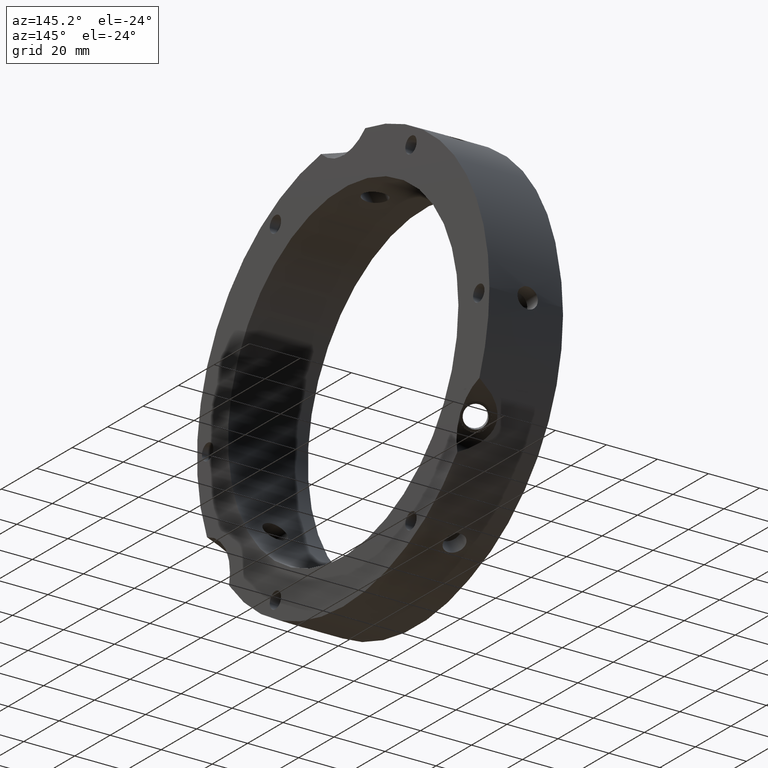
[diagram: clean part render]
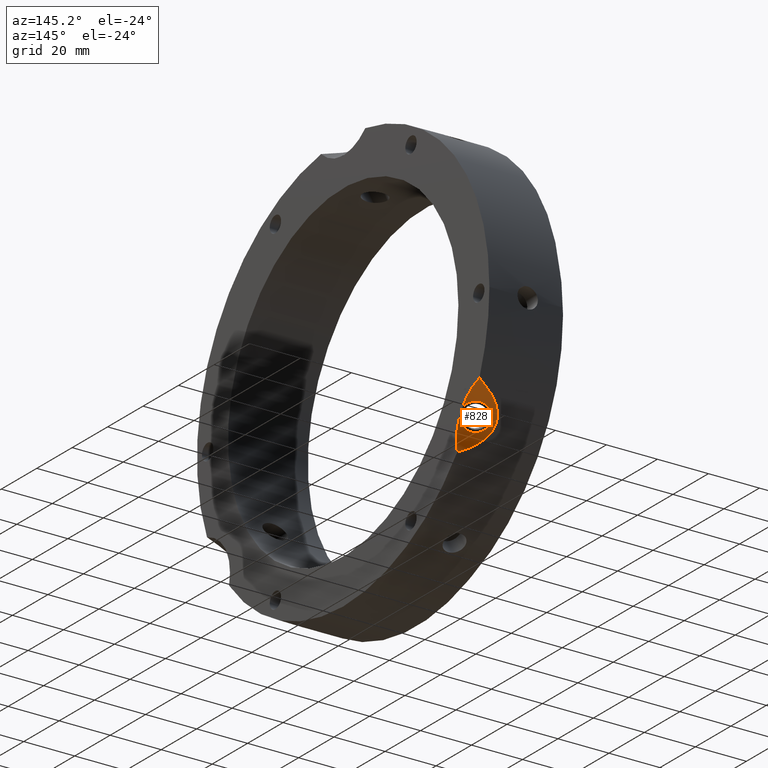
[diagram: same view with one face highlighted and labeled with its STEP entity id]
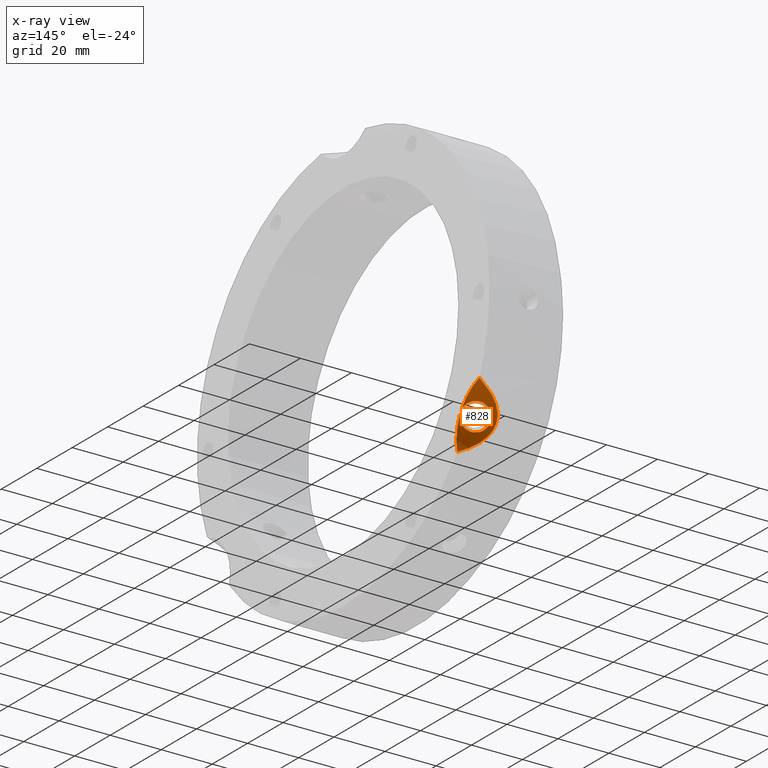
[diagram: x-ray of the same camera — body ghosted, the highlighted face saturated]
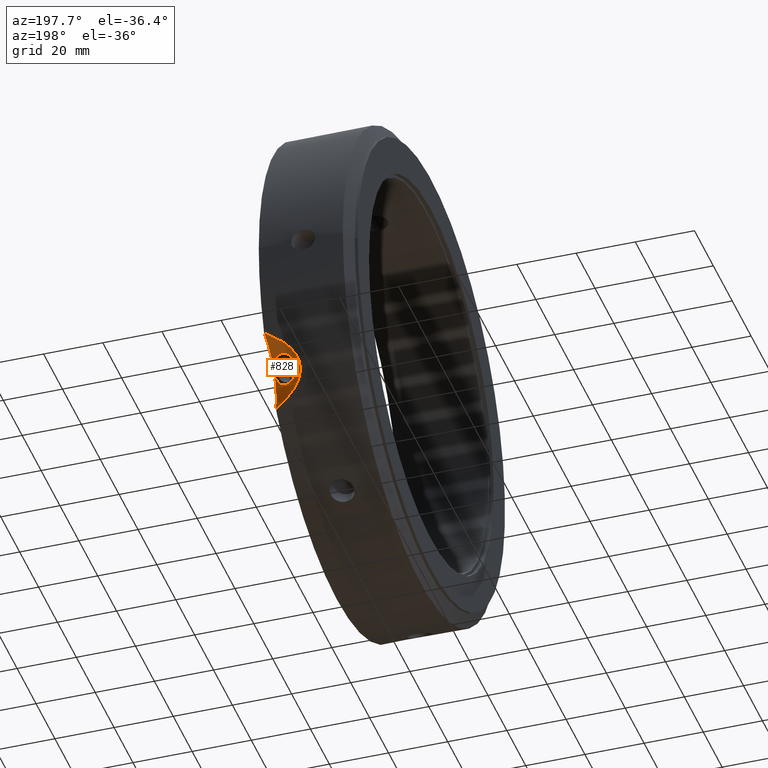
[diagram: same view with one face highlighted and labeled with its STEP entity id]
A machine part, auxiliary view. The second image highlights one B-rep face of the part: STEP entity #828.
The next image is the same camera in x-ray: the body ghosted, the highlighted face saturated — about 0% of this face is hidden behind the body in this view.
A second angle (auxiliary view) of the same face is appended — the face is thin or edge-on in the first view.
In plain terms, the highlighted cylindrical surface (partial cylindrical patch) has radius 20 mm, axis along (-0.866, 0.433, -0.25).
Its self-contained STEP definition (entity closure, byte-faithful):
#740=CARTESIAN_POINT('',(35.321507575751177,84.590189601633966,-48.838168737304919));
#741=DIRECTION('',(-0.866025403784438,0.43301270189222,-0.25));
#742=DIRECTION('',(-0.5,-0.75,0.43301270189222));
#743=AXIS2_PLACEMENT_3D('',#740,#741,#742);
#744=CYLINDRICAL_SURFACE('',#743,19.999999999999996);
#745=CARTESIAN_POINT('',(31.999999999937756,66.64590811213553,-37.599345679730483));
#746=VERTEX_POINT('',#745);
#747=CARTESIAN_POINT('',(31.999999999999986,76.865846385536514,-29.964840387278922));
#748=VERTEX_POINT('',#747);
#749=CARTESIAN_POINT('',(31.999999999999986,86.250943389509558,-49.797005383792587));
#750=DIRECTION('',(-1.0,0.0,0.0));
#751=DIRECTION('',(0.0,-0.866025403784438,0.5));
#752=AXIS2_PLACEMENT_3D('',#749,#750,#751);
#753=ELLIPSE('',#752,23.094010767585029,19.999999999999993);
#754=EDGE_CURVE('',#746,#748,#753,.T.);
#755=ORIENTED_EDGE('',*,*,#754,.F.);
#756=CARTESIAN_POINT('',(31.999999999937756,65.884942580387005,-38.917376643527589));
#757=VERTEX_POINT('',#756);
#758=CARTESIAN_POINT('',(31.999999999875538,65.884942580386991,-38.917376643527589));
#759=CARTESIAN_POINT('',(31.954826590081133,65.720624953199163,-39.289724202412842));
#760=CARTESIAN_POINT('',(31.871886132681336,65.587524551721401,-39.681087205646996));
#761=CARTESIAN_POINT('',(31.55759033793673,65.337935964580126,-40.706025022368841));
#762=CARTESIAN_POINT('',(31.261849349697826,65.287586394798311,-41.336969903607681));
#763=CARTESIAN_POINT('',(30.563051379613704,65.351206774362367,-42.415716676639867));
#764=CARTESIAN_POINT('',(30.112491685264295,65.469339245048474,-42.936563192424948));
#765=CARTESIAN_POINT('',(29.08825202819747,65.847124574690639,-43.756657322787255));
#766=CARTESIAN_POINT('',(28.513338929405595,66.105452864566274,-44.054973751993707));
#767=CARTESIAN_POINT('',(27.398783399863568,66.66273062933729,-44.37671821949764));
#768=CARTESIAN_POINT('',(26.788405830031373,66.997047673773707,-44.420565733590223));
#769=CARTESIAN_POINT('',(25.637835829072209,67.706667173144538,-44.228285073976679));
#770=CARTESIAN_POINT('',(25.098423471811682,68.08352072826338,-43.993218873435183));
#771=CARTESIAN_POINT('',(24.234198147248406,68.801411996023035,-43.36567806036016));
#772=CARTESIAN_POINT('',(23.850882682695019,69.19128979220099,-42.930759892028618));
#773=CARTESIAN_POINT('',(23.337675392363227,69.952379903117134,-41.920185618820398));
#774=CARTESIAN_POINT('',(23.208742135454166,70.324876668525945,-41.345010763319863));
#775=CARTESIAN_POINT('',(23.208742135454166,70.96826797503897,-40.230624331291168));
#776=CARTESIAN_POINT('',(23.337675392363227,71.280135628816083,-39.620445241869341));
#777=CARTESIAN_POINT('',(23.850882682695019,71.774773566367315,-38.456034734642735));
#778=CARTESIAN_POINT('',(24.234198147248406,71.956484850620868,-37.900931574615363));
#779=CARTESIAN_POINT('',(25.098423471811682,72.141005502775556,-36.965449093042977));
#780=CARTESIAN_POINT('',(25.637835829072209,72.156152026456141,-36.52155124053283));
#781=CARTESIAN_POINT('',(26.788405830031373,71.967862212652491,-35.810862397250119));
#782=CARTESIAN_POINT('',(27.398783399863568,71.762730629337298,-35.543259100896343));
#783=CARTESIAN_POINT('',(27.956061164634583,71.484091746951805,-35.382386867144376));
#784=CARTESIAN_POINT('',(28.513338929405595,71.205452864566297,-35.22151463339241));
#785=CARTESIAN_POINT('',(29.088252028197484,70.817939113569423,-35.146953986447144));
#786=CARTESIAN_POINT('',(30.11249168526431,69.918824098360076,-35.2298293589811));
#787=CARTESIAN_POINT('',(30.563051379613704,69.408691548874529,-35.387946896247648));
#788=CARTESIAN_POINT('',(31.261849349697826,68.442659249396144,-35.872223417862863));
#789=CARTESIAN_POINT('',(31.55759033793673,67.921419738746465,-36.231299864982965));
#790=CARTESIAN_POINT('',(31.871886132681336,67.158591845736638,-36.959918830302904));
#791=CARTESIAN_POINT('',(31.954826590081126,66.886211743573355,-37.270868660853623));
#792=CARTESIAN_POINT('',(31.999999999875534,66.64590811213553,-37.599345679730483));
#793=B_SPLINE_CURVE_WITH_KNOTS('',3,(#758,#759,#760,#761,#762,#763,#764,#765,#766,#767,#768,#769,#770,#771,#772,#773,#774,#775,#776,#777,#778,#779,#780,#781,#782,#783,#784,#785,#786,#787,#788,#789,#790,#791,#792),.UNSPECIFIED.,.F.,.U.,(4,2,2,2,2,2,2,2,2,2,2,2,3,2,2,2,4),(0.84692676776077,0.96514553686646,1.158162928820372,1.351209609322735,1.544256289825098,1.73730297032746,1.930349650829823,2.123367042783735,2.316384434737646,2.509401826691558,2.70241921864547,2.895465899147832,3.088512579650195,3.281559260152558,3.474605940654921,3.667623332608832,3.785842101714522),.UNSPECIFIED.);
#794=EDGE_CURVE('',#757,#746,#793,.T.);
#795=ORIENTED_EDGE('',*,*,#794,.F.);
#796=CARTESIAN_POINT('',(31.999999999999989,64.383236188497662,-51.585355459627536));
#797=VERTEX_POINT('',#796);
#798=CARTESIAN_POINT('',(31.999999999999986,86.250943389509558,-49.797005383792587));
#799=DIRECTION('',(-1.0,0.0,0.0));
#800=DIRECTION('',(0.0,-0.866025403784438,0.5));
#801=AXIS2_PLACEMENT_3D('',#798,#799,#800);
#802=ELLIPSE('',#801,23.094010767585029,19.999999999999993);
#803=EDGE_CURVE('',#797,#757,#802,.T.);
#804=ORIENTED_EDGE('',*,*,#803,.F.);
#805=CARTESIAN_POINT('',(31.999999999999964,76.865846385536528,-29.964840387278887));
#806=CARTESIAN_POINT('',(30.743141802382233,76.617922308281322,-30.600815543204153));
#807=CARTESIAN_POINT('',(29.540854089706396,76.342693375729169,-31.283986091858161));
#808=CARTESIAN_POINT('',(26.70721767555694,75.559973393956099,-33.142316669831821));
#809=CARTESIAN_POINT('',(24.978789514211183,74.948442935778331,-34.525924308852069));
#810=CARTESIAN_POINT('',(23.063079524995274,73.800589763880083,-36.884788355953603));
#811=CARTESIAN_POINT('',(22.536002102678069,73.379273097250859,-37.718553766833857));
#812=CARTESIAN_POINT('',(21.808098899204921,72.464243718015638,-39.447945460195236));
#813=CARTESIAN_POINT('',(21.607695154586786,71.970369275392656,-40.343663775525833));
#814=CARTESIAN_POINT('',(21.607695154586786,70.923822349039668,-42.156336224474259));
#815=CARTESIAN_POINT('',(21.808098899204921,70.395044754639855,-43.031903195730919));
#816=CARTESIAN_POINT('',(22.536002102678069,69.354862304712725,-44.689037730038407));
#817=CARTESIAN_POINT('',(23.063079524995285,68.843458611408266,-45.470791371817228));
#818=CARTESIAN_POINT('',(24.978789514211194,67.374549008493688,-47.644293402046415));
#819=CARTESIAN_POINT('',(26.707217675556922,66.48207487332084,-48.865698133526436));
#820=CARTESIAN_POINT('',(29.540854089706393,65.26407337505276,-50.472718810778439));
#821=CARTESIAN_POINT('',(30.743141802382226,64.81004479107709,-51.052659332552075));
#822=CARTESIAN_POINT('',(31.999999999999979,64.383236188497648,-51.58535545962755));
#823=B_SPLINE_CURVE_WITH_KNOTS('',3,(#805,#806,#807,#808,#809,#810,#811,#812,#813,#814,#815,#816,#817,#818,#819,#820,#821,#822),.UNSPECIFIED.,.F.,.U.,(4,2,2,2,2,2,2,2,4),(2.412922658358301,2.828353721178481,3.456281876990279,3.770245954896177,4.084210032802076,4.398174110707974,4.712138188613873,5.340066344425669,5.755497407245853),.UNSPECIFIED.);
#824=EDGE_CURVE('',#748,#797,#823,.T.);
#825=ORIENTED_EDGE('',*,*,#824,.F.);
#826=EDGE_LOOP('',(#755,#795,#804,#825));
#827=FACE_OUTER_BOUND('',#826,.T.);
#828=ADVANCED_FACE('',(#827),#744,.F.);